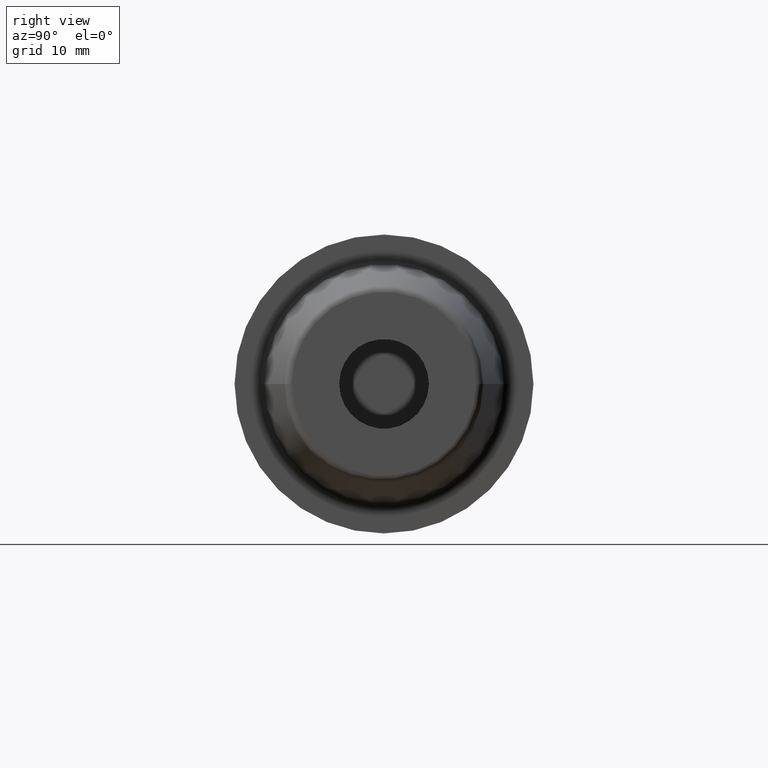
[diagram: clean part render]
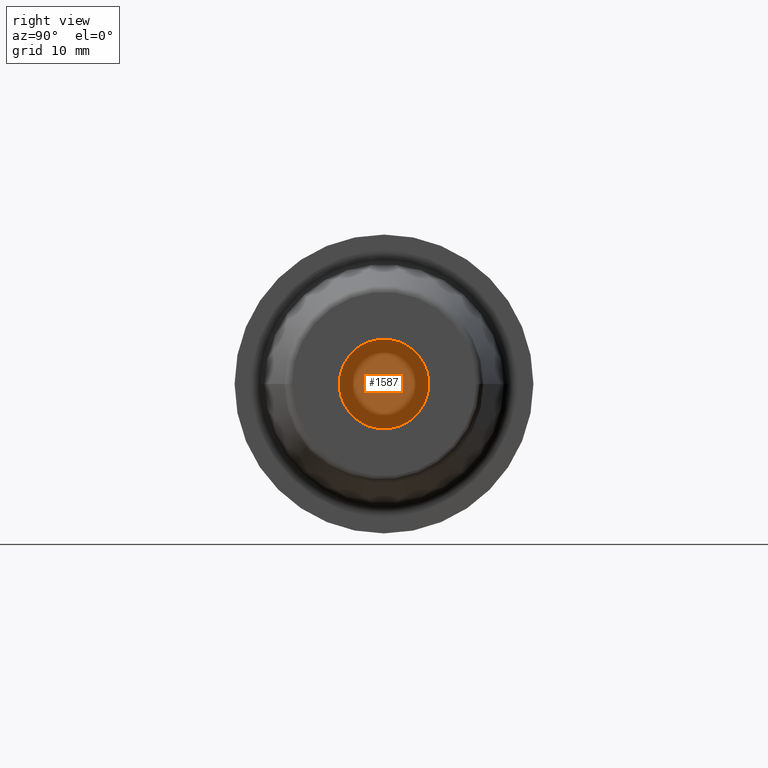
[diagram: same view with one face highlighted and labeled with its STEP entity id]
A machine part, right view. The second image highlights one B-rep face of the part: STEP entity #1587.
In plain terms, the highlighted planar face has unit normal (-1, 0, 0).
Its self-contained STEP definition (entity closure, byte-faithful):
#568=CARTESIAN_POINT('',(1.2E1,0.E0,0.E0));
#569=DIRECTION('',(-1.E0,0.E0,0.E0));
#570=DIRECTION('',(0.E0,-1.E0,0.E0));
#571=AXIS2_PLACEMENT_3D('',#568,#569,#570);
#573=CARTESIAN_POINT('',(1.2E1,0.E0,0.E0));
#574=DIRECTION('',(-1.E0,0.E0,0.E0));
#575=DIRECTION('',(0.E0,1.E0,0.E0));
#576=AXIS2_PLACEMENT_3D('',#573,#574,#575);
#706=CARTESIAN_POINT('',(1.2E1,-6.E0,0.E0));
#707=CARTESIAN_POINT('',(1.2E1,6.E0,0.E0));
#708=VERTEX_POINT('',#706);
#709=VERTEX_POINT('',#707);
#1578=CARTESIAN_POINT('',(1.2E1,0.E0,0.E0));
#1579=DIRECTION('',(-1.E0,0.E0,0.E0));
#1580=DIRECTION('',(0.E0,-1.E0,0.E0));
#1581=AXIS2_PLACEMENT_3D('',#1578,#1579,#1580);
#1582=PLANE('',#1581);
#1583=ORIENTED_EDGE('',*,*,#1558,.T.);
#1584=ORIENTED_EDGE('',*,*,#1572,.T.);
#1585=EDGE_LOOP('',(#1583,#1584));
#1586=FACE_OUTER_BOUND('',#1585,.F.);
#1587=ADVANCED_FACE('',(#1586),#1582,.F.);
#572=CIRCLE('',#571,6.E0);
#577=CIRCLE('',#576,6.E0);
#1558=EDGE_CURVE('',#708,#709,#572,.T.);
#1572=EDGE_CURVE('',#709,#708,#577,.T.);